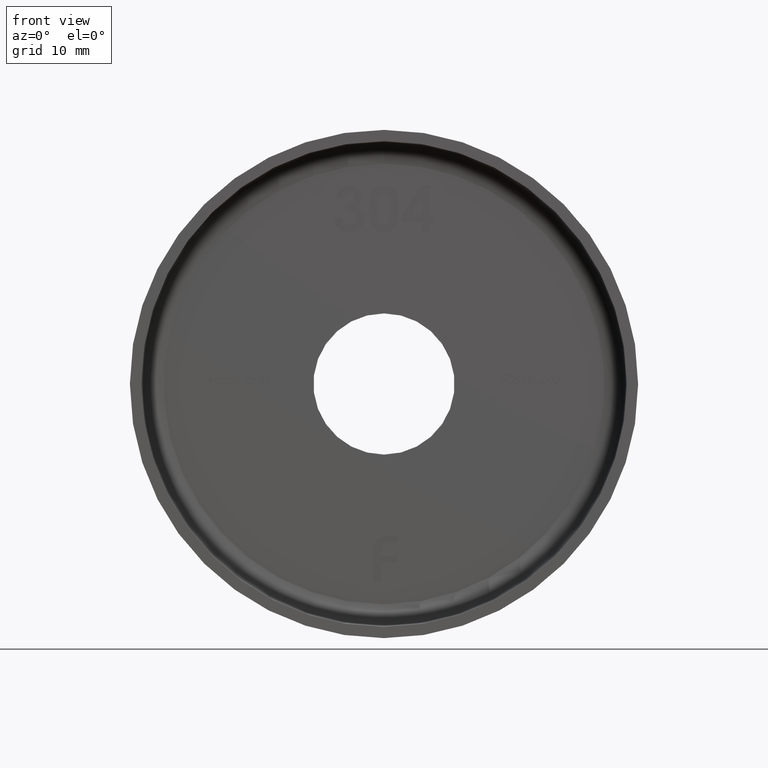
[diagram: clean part render]
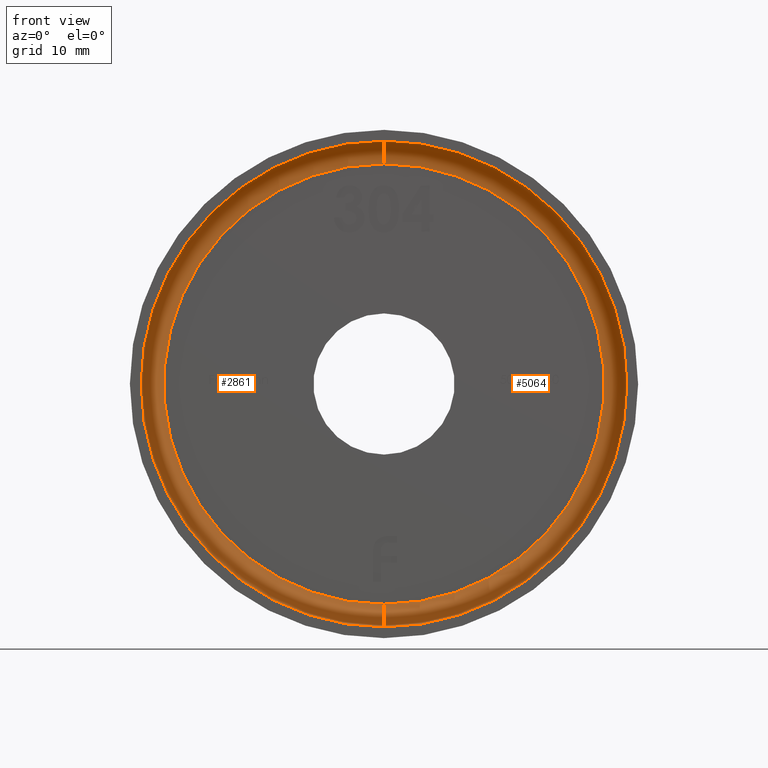
[diagram: same view with one multi-face feature highlighted, each face labeled with its STEP entity id]
A machine part, front view. The highlighted faces form ONE feature: a constant-radius fillet chain: 2 tangent blend faces with common blend radius 2 mm. The faces share edges in the B-rep.
Their STEP definitions:
[1] entity #2861 (Torus):
#156 = CIRCLE ( 'NONE', #6841, 2.000000000000001776 ) ;
#1454 = DIRECTION ( 'NONE',  ( -0.000000000000000000, -1.000000000000000000, -0.000000000000000000 ) ) ;
#1730 = CIRCLE ( 'NONE', #2102, 21.50000000000000355 ) ;
#1961 = CARTESIAN_POINT ( 'NONE',  ( 0.000000000000000000, 9.000000000000001776, 0.000000000000000000 ) ) ;
#2016 = AXIS2_PLACEMENT_3D ( 'NONE', #10743, #9397, #14681 ) ;
#2102 = AXIS2_PLACEMENT_3D ( 'NONE', #1961, #16320, #11084 ) ;
#2113 = VERTEX_POINT ( 'NONE', #15623 ) ;
#2861 = ADVANCED_FACE ( 'NONE', ( #7055 ), #13267, .F. ) ;
#3247 = DIRECTION ( 'NONE',  ( -1.000000000000000000, 0.000000000000000000, 0.000000000000000000 ) ) ;
#3436 = EDGE_CURVE ( 'NONE', #11763, #6145, #16110, .T. ) ;
#4103 = AXIS2_PLACEMENT_3D ( 'NONE', #9279, #1454, #6649 ) ;
#4418 = DIRECTION ( 'NONE',  ( 0.000000000000000000, 0.000000000000000000, 1.000000000000000000 ) ) ;
#4610 = VERTEX_POINT ( 'NONE', #8434 ) ;
#5350 = EDGE_CURVE ( 'NONE', #11763, #2113, #156, .T. ) ;
#5468 = EDGE_CURVE ( 'NONE', #6145, #4610, #9866, .T. ) ;
#6145 = VERTEX_POINT ( 'NONE', #12497 ) ;
#6649 = DIRECTION ( 'NONE',  ( 0.000000000000000000, 0.000000000000000000, -1.000000000000000000 ) ) ;
#6841 = AXIS2_PLACEMENT_3D ( 'NONE', #6909, #13446, #14872 ) ;
#6909 = CARTESIAN_POINT ( 'NONE',  ( 2.388061258337339333E-15, 9.000000000000001776, 19.50000000000000355 ) ) ;
#7055 = FACE_OUTER_BOUND ( 'NONE', #13102, .T. ) ;
#7952 = ORIENTED_EDGE ( 'NONE', *, *, #5468, .F. ) ;
#8434 = CARTESIAN_POINT ( 'NONE',  ( 0.000000000000000000, 9.000000000000001776, -21.50000000000000355 ) ) ;
#9279 = CARTESIAN_POINT ( 'NONE',  ( 0.000000000000000000, 9.000000000000001776, 0.000000000000000000 ) ) ;
#9397 = DIRECTION ( 'NONE',  ( -0.000000000000000000, -1.000000000000000000, -0.000000000000000000 ) ) ;
#9866 = CIRCLE ( 'NONE', #15478, 2.000000000000001776 ) ;
#10364 = CARTESIAN_POINT ( 'NONE',  ( 2.510525938252074481E-15, 11.00000000000000178, 19.50000000000000355 ) ) ;
#10743 = CARTESIAN_POINT ( 'NONE',  ( 0.000000000000000000, 11.00000000000000178, 0.000000000000000000 ) ) ;
#11084 = DIRECTION ( 'NONE',  ( 0.000000000000000000, 0.000000000000000000, -1.000000000000000000 ) ) ;
#11511 = EDGE_CURVE ( 'NONE', #2113, #4610, #1730, .T. ) ;
#11763 = VERTEX_POINT ( 'NONE', #10364 ) ;
#12497 = CARTESIAN_POINT ( 'NONE',  ( 0.000000000000000000, 11.00000000000000178, -19.50000000000000355 ) ) ;
#12537 = ORIENTED_EDGE ( 'NONE', *, *, #5350, .T. ) ;
#13099 = ORIENTED_EDGE ( 'NONE', *, *, #3436, .F. ) ;
#13102 = EDGE_LOOP ( 'NONE', ( #13099, #12537, #16646, #7952 ) ) ;
#13267 = TOROIDAL_SURFACE ( 'NONE', #4103, 19.50000000000000355, 2.000000000000000000 ) ;
#13446 = DIRECTION ( 'NONE',  ( 1.000000000000000000, 0.000000000000000000, -1.224646799147353207E-16 ) ) ;
#14681 = DIRECTION ( 'NONE',  ( 0.000000000000000000, 0.000000000000000000, -1.000000000000000000 ) ) ;
#14872 = DIRECTION ( 'NONE',  ( -1.224646799147351482E-16, 0.000000000000000000, -1.000000000000000000 ) ) ;
#15478 = AXIS2_PLACEMENT_3D ( 'NONE', #16296, #3247, #4418 ) ;
#15623 = CARTESIAN_POINT ( 'NONE',  ( 2.632990618166810024E-15, 9.000000000000001776, 21.50000000000000355 ) ) ;
#16110 = CIRCLE ( 'NONE', #2016, 19.50000000000000355 ) ;
#16296 = CARTESIAN_POINT ( 'NONE',  ( 0.000000000000000000, 9.000000000000001776, -19.50000000000000355 ) ) ;
#16320 = DIRECTION ( 'NONE',  ( -0.000000000000000000, -1.000000000000000000, -0.000000000000000000 ) ) ;
#16646 = ORIENTED_EDGE ( 'NONE', *, *, #11511, .T. ) ;
[2] entity #5064 (Torus):
#156 = CIRCLE ( 'NONE', #6841, 2.000000000000001776 ) ;
#1653 = AXIS2_PLACEMENT_3D ( 'NONE', #6035, #16517, #1992 ) ;
#1751 = CIRCLE ( 'NONE', #3639, 21.50000000000000355 ) ;
#1992 = DIRECTION ( 'NONE',  ( 0.000000000000000000, 0.000000000000000000, -1.000000000000000000 ) ) ;
#2113 = VERTEX_POINT ( 'NONE', #15623 ) ;
#2262 = FACE_OUTER_BOUND ( 'NONE', #4374, .T. ) ;
#2795 = CIRCLE ( 'NONE', #1653, 19.50000000000000355 ) ;
#3247 = DIRECTION ( 'NONE',  ( -1.000000000000000000, 0.000000000000000000, 0.000000000000000000 ) ) ;
#3639 = AXIS2_PLACEMENT_3D ( 'NONE', #16001, #16111, #5337 ) ;
#4374 = EDGE_LOOP ( 'NONE', ( #11036, #7537, #11475, #5673 ) ) ;
#4418 = DIRECTION ( 'NONE',  ( 0.000000000000000000, 0.000000000000000000, 1.000000000000000000 ) ) ;
#4610 = VERTEX_POINT ( 'NONE', #8434 ) ;
#5064 = ADVANCED_FACE ( 'NONE', ( #2262 ), #11337, .F. ) ;
#5337 = DIRECTION ( 'NONE',  ( 0.000000000000000000, 0.000000000000000000, -1.000000000000000000 ) ) ;
#5350 = EDGE_CURVE ( 'NONE', #11763, #2113, #156, .T. ) ;
#5468 = EDGE_CURVE ( 'NONE', #6145, #4610, #9866, .T. ) ;
#5673 = ORIENTED_EDGE ( 'NONE', *, *, #11126, .T. ) ;
#6035 = CARTESIAN_POINT ( 'NONE',  ( 0.000000000000000000, 11.00000000000000178, 0.000000000000000000 ) ) ;
#6145 = VERTEX_POINT ( 'NONE', #12497 ) ;
#6239 = DIRECTION ( 'NONE',  ( 0.000000000000000000, 0.000000000000000000, -1.000000000000000000 ) ) ;
#6841 = AXIS2_PLACEMENT_3D ( 'NONE', #6909, #13446, #14872 ) ;
#6909 = CARTESIAN_POINT ( 'NONE',  ( 2.388061258337339333E-15, 9.000000000000001776, 19.50000000000000355 ) ) ;
#7537 = ORIENTED_EDGE ( 'NONE', *, *, #9484, .F. ) ;
#8434 = CARTESIAN_POINT ( 'NONE',  ( 0.000000000000000000, 9.000000000000001776, -21.50000000000000355 ) ) ;
#9484 = EDGE_CURVE ( 'NONE', #6145, #11763, #2795, .T. ) ;
#9866 = CIRCLE ( 'NONE', #15478, 2.000000000000001776 ) ;
#10364 = CARTESIAN_POINT ( 'NONE',  ( 2.510525938252074481E-15, 11.00000000000000178, 19.50000000000000355 ) ) ;
#10367 = AXIS2_PLACEMENT_3D ( 'NONE', #11312, #15309, #6239 ) ;
#11036 = ORIENTED_EDGE ( 'NONE', *, *, #5350, .F. ) ;
#11126 = EDGE_CURVE ( 'NONE', #4610, #2113, #1751, .T. ) ;
#11312 = CARTESIAN_POINT ( 'NONE',  ( 0.000000000000000000, 9.000000000000001776, 0.000000000000000000 ) ) ;
#11337 = TOROIDAL_SURFACE ( 'NONE', #10367, 19.50000000000000355, 2.000000000000000000 ) ;
#11475 = ORIENTED_EDGE ( 'NONE', *, *, #5468, .T. ) ;
#11763 = VERTEX_POINT ( 'NONE', #10364 ) ;
#12497 = CARTESIAN_POINT ( 'NONE',  ( 0.000000000000000000, 11.00000000000000178, -19.50000000000000355 ) ) ;
#13446 = DIRECTION ( 'NONE',  ( 1.000000000000000000, 0.000000000000000000, -1.224646799147353207E-16 ) ) ;
#14872 = DIRECTION ( 'NONE',  ( -1.224646799147351482E-16, 0.000000000000000000, -1.000000000000000000 ) ) ;
#15309 = DIRECTION ( 'NONE',  ( -0.000000000000000000, -1.000000000000000000, -0.000000000000000000 ) ) ;
#15478 = AXIS2_PLACEMENT_3D ( 'NONE', #16296, #3247, #4418 ) ;
#15623 = CARTESIAN_POINT ( 'NONE',  ( 2.632990618166810024E-15, 9.000000000000001776, 21.50000000000000355 ) ) ;
#16001 = CARTESIAN_POINT ( 'NONE',  ( 0.000000000000000000, 9.000000000000001776, 0.000000000000000000 ) ) ;
#16111 = DIRECTION ( 'NONE',  ( -0.000000000000000000, -1.000000000000000000, -0.000000000000000000 ) ) ;
#16296 = CARTESIAN_POINT ( 'NONE',  ( 0.000000000000000000, 9.000000000000001776, -19.50000000000000355 ) ) ;
#16517 = DIRECTION ( 'NONE',  ( -0.000000000000000000, -1.000000000000000000, -0.000000000000000000 ) ) ;